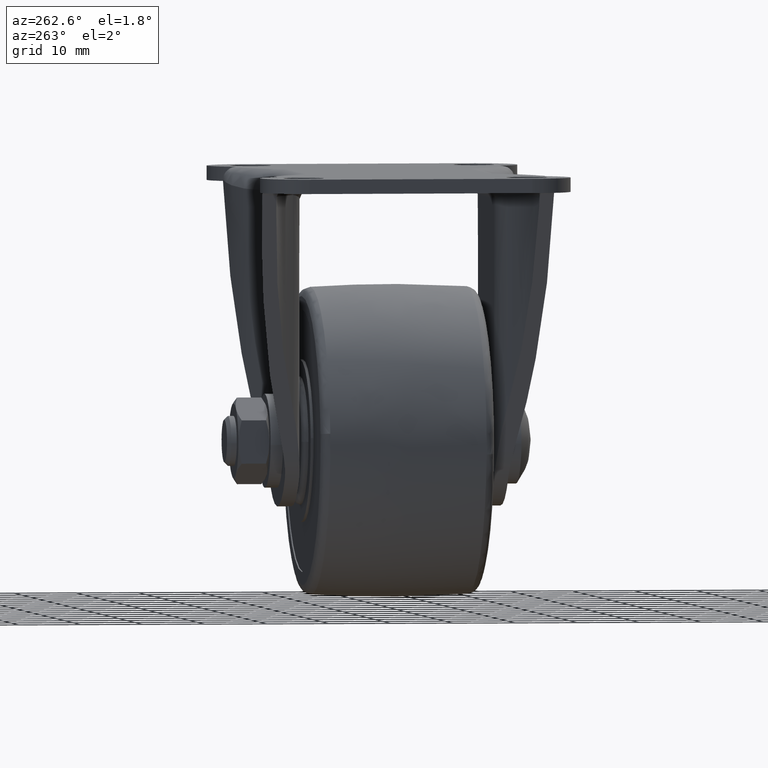
[diagram: clean part render]
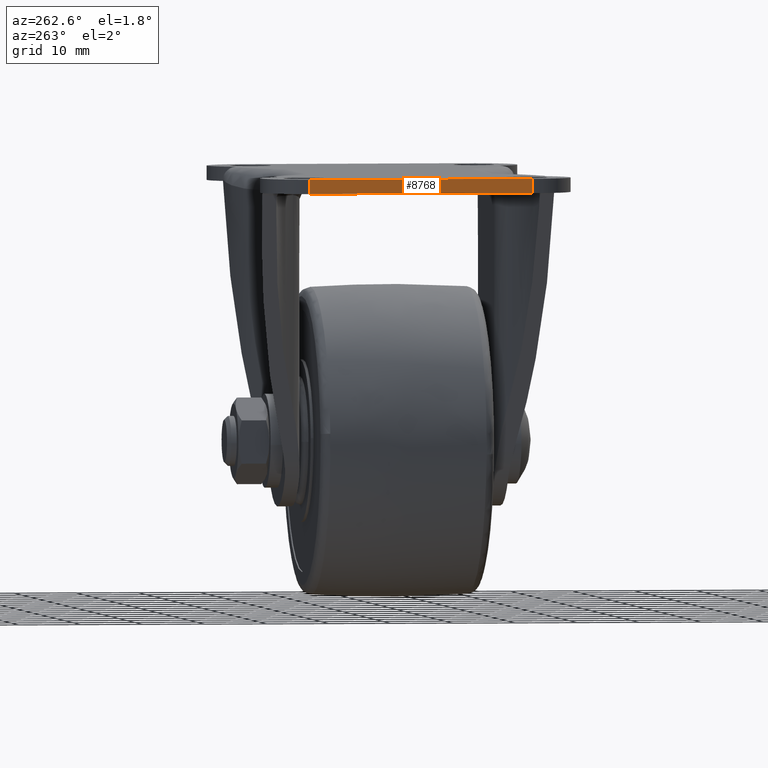
[diagram: same view with one face highlighted and labeled with its STEP entity id]
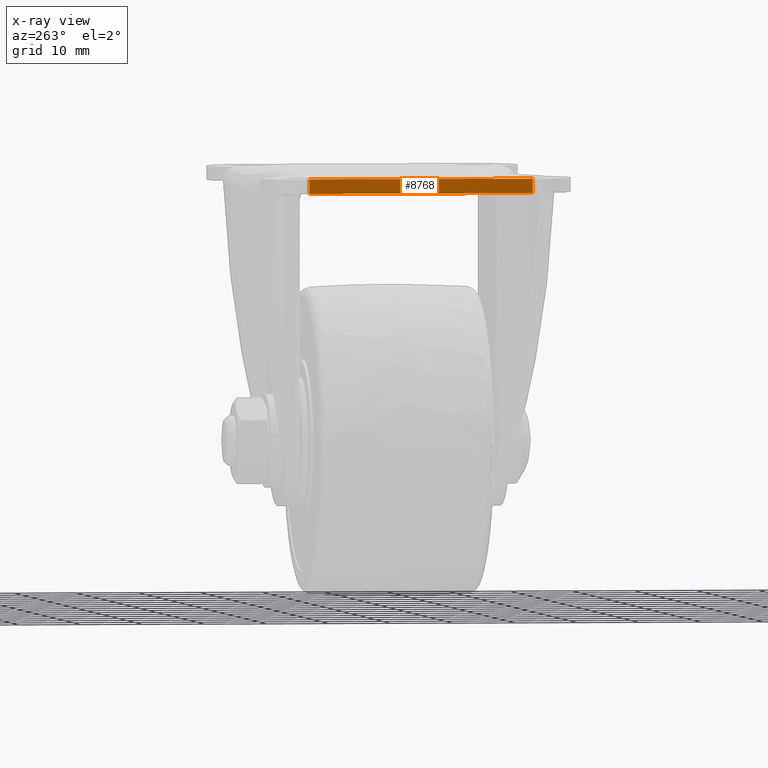
[diagram: x-ray of the same camera — body ghosted, the highlighted face saturated]
A machine part, auxiliary view. The second image highlights one B-rep face of the part: STEP entity #8768.
The next image is the same camera in x-ray: the body ghosted, the highlighted face saturated — about 0% of this face is hidden behind the body in this view.
In plain terms, the highlighted face is a freeform B-spline surface patch.
Its self-contained STEP definition (entity closure, byte-faithful):
#5384=CARTESIAN_POINT('',(-40.0,18.0,0.0));
#5385=VERTEX_POINT('',#5384);
#5406=CARTESIAN_POINT('',(-40.0,-18.0,0.0));
#5407=VERTEX_POINT('',#5406);
#5408=CARTESIAN_POINT('',(-40.0,-18.0,0.0));
#5409=CARTESIAN_POINT('',(-40.0,18.0,0.0));
#5410=QUASI_UNIFORM_CURVE('',1,(#5408,#5409),.UNSPECIFIED.,.F.,.U.);
#5411=EDGE_CURVE('',#5407,#5385,#5410,.T.);
#8529=CARTESIAN_POINT('',(-40.0,-18.0,-2.299999999999970));
#8530=VERTEX_POINT('',#8529);
#8560=CARTESIAN_POINT('',(-40.0,-18.0,-2.299999999999970));
#8561=CARTESIAN_POINT('',(-40.0,-18.0,0.0));
#8562=QUASI_UNIFORM_CURVE('',1,(#8560,#8561),.UNSPECIFIED.,.F.,.U.);
#8563=EDGE_CURVE('',#8530,#5407,#8562,.T.);
#8717=CARTESIAN_POINT('',(-40.0,18.0,-2.299999999999970));
#8718=VERTEX_POINT('',#8717);
#8739=CARTESIAN_POINT('',(-40.0,18.0,-2.299999999999970));
#8740=CARTESIAN_POINT('',(-40.0,18.0,0.0));
#8741=QUASI_UNIFORM_CURVE('',1,(#8739,#8740),.UNSPECIFIED.,.F.,.U.);
#8742=EDGE_CURVE('',#8718,#5385,#8741,.T.);
#8753=CARTESIAN_POINT('',(-40.0,-19.798199930225010,0.114884995542152));
#8754=CARTESIAN_POINT('',(-40.0,-19.798199930225010,-2.414885057232930));
#8755=CARTESIAN_POINT('',(-40.0,19.798200895820258,0.114884995542152));
#8756=CARTESIAN_POINT('',(-40.0,19.798200895820258,-2.414885057232930));
#8757=B_SPLINE_SURFACE_WITH_KNOTS('',1,1,((#8753,#8755),(#8754,#8756)),.UNSPECIFIED.,.F.,.F.,.U.,(2,2),(2,2),(0.0,2.529770052775082),(0.0,39.596400826045269),.UNSPECIFIED.);
#8758=ORIENTED_EDGE('',*,*,#5411,.T.);
#8759=ORIENTED_EDGE('',*,*,#8742,.F.);
#8760=CARTESIAN_POINT('',(-40.0,-18.0,-2.299999999999970));
#8761=CARTESIAN_POINT('',(-40.0,18.0,-2.299999999999970));
#8762=QUASI_UNIFORM_CURVE('',1,(#8760,#8761),.UNSPECIFIED.,.F.,.U.);
#8763=EDGE_CURVE('',#8530,#8718,#8762,.T.);
#8764=ORIENTED_EDGE('',*,*,#8763,.F.);
#8765=ORIENTED_EDGE('',*,*,#8563,.T.);
#8766=EDGE_LOOP('',(#8758,#8759,#8764,#8765));
#8767=FACE_OUTER_BOUND('',#8766,.T.);
#8768=ADVANCED_FACE('',(#8767),#8757,.F.);